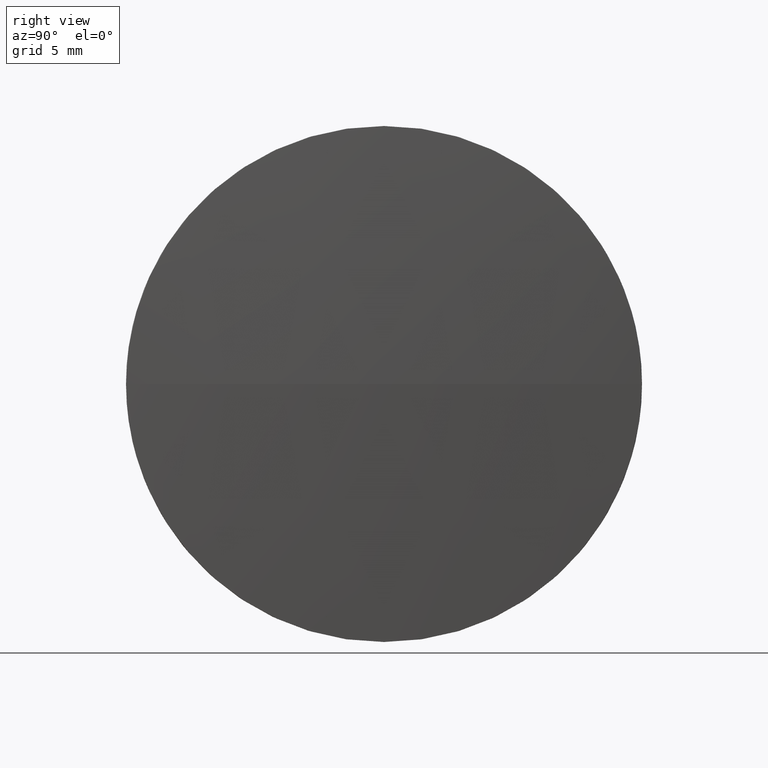
[diagram: clean part render]
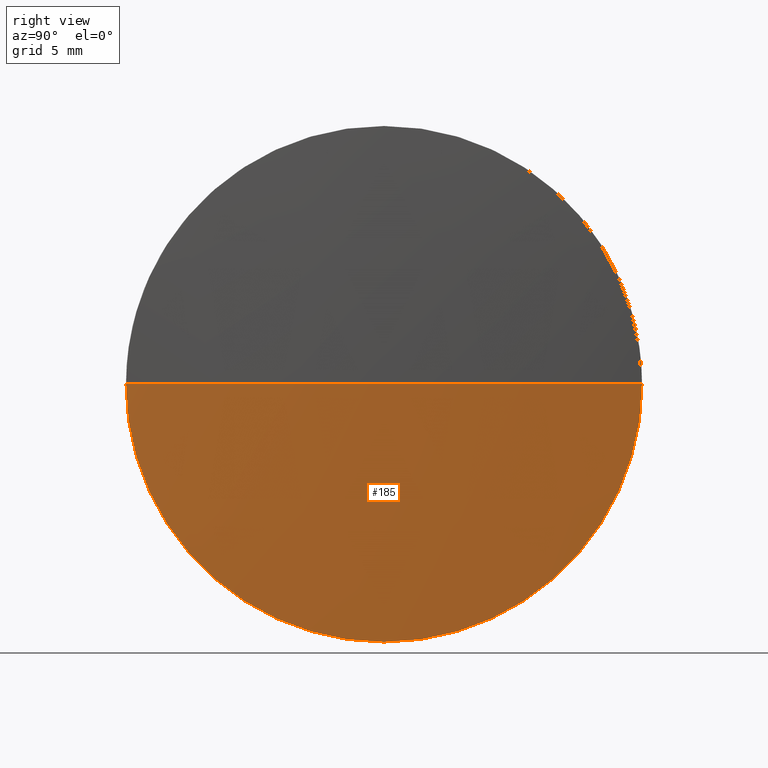
[diagram: same view with one face highlighted and labeled with its STEP entity id]
A machine part, right view. The second image highlights one B-rep face of the part: STEP entity #185.
In plain terms, the highlighted spherical surface has radius 183.504 mm.
Its self-contained STEP definition (entity closure, byte-faithful):
#3 = CARTESIAN_POINT ( 'NONE',  ( 117.8700467759432500, 65.23355492641219700, 0.0000000000000000000 ) ) ;
#5 = CIRCLE ( 'NONE', #88, 183.5040909090919300 ) ;
#9 = CARTESIAN_POINT ( 'NONE',  ( -65.19404413314869400, 65.23355492641219700, 0.0000000000000000000 ) ) ;
#10 = ORIENTED_EDGE ( 'NONE', *, *, #166, .T. ) ;
#22 = CARTESIAN_POINT ( 'NONE',  ( -65.19404413314869400, 65.23355492641219700, 0.0000000000000000000 ) ) ;
#27 = VERTEX_POINT ( 'NONE', #95 ) ;
#30 = VERTEX_POINT ( 'NONE', #122 ) ;
#34 = SPHERICAL_SURFACE ( 'NONE', #135, 183.5040909090919300 ) ;
#41 = DIRECTION ( 'NONE',  ( -0.0000000000000000000, 0.0000000000000000000, 1.000000000000000000 ) ) ;
#46 = EDGE_CURVE ( 'NONE', #87, #158, #182, .T. ) ;
#55 = CIRCLE ( 'NONE', #77, 183.5040909090919300 ) ;
#61 = AXIS2_PLACEMENT_3D ( 'NONE', #3, #139, #176 ) ;
#62 = EDGE_CURVE ( 'NONE', #27, #87, #173, .T. ) ;
#66 = DIRECTION ( 'NONE',  ( 0.0000000000000000000, 1.224646799147353200E-016, -1.000000000000000000 ) ) ;
#67 = CARTESIAN_POINT ( 'NONE',  ( -65.19404413314869400, 65.23355492641219700, 0.0000000000000000000 ) ) ;
#69 = CARTESIAN_POINT ( 'NONE',  ( 117.8700467759432500, 65.23355492641219700, -12.70000000000000300 ) ) ;
#70 = AXIS2_PLACEMENT_3D ( 'NONE', #83, #98, #137 ) ;
#77 = AXIS2_PLACEMENT_3D ( 'NONE', #67, #41, #179 ) ;
#83 = CARTESIAN_POINT ( 'NONE',  ( 117.8700467759432500, 65.23355492641219700, 0.0000000000000000000 ) ) ;
#87 = VERTEX_POINT ( 'NONE', #69 ) ;
#88 = AXIS2_PLACEMENT_3D ( 'NONE', #9, #66, #112 ) ;
#95 = CARTESIAN_POINT ( 'NONE',  ( 117.8700467759432400, 77.93355492641208600, 0.0000000000000000000 ) ) ;
#98 = DIRECTION ( 'NONE',  ( -1.000000000000000000, -0.0000000000000000000, -0.0000000000000000000 ) ) ;
#110 = FACE_OUTER_BOUND ( 'NONE', #148, .T. ) ;
#112 = DIRECTION ( 'NONE',  ( 0.0000000000000000000, 1.000000000000000000, 1.224646799147353200E-016 ) ) ;
#115 = CARTESIAN_POINT ( 'NONE',  ( 117.8700467759432400, 52.53355492641230700, -1.555301434917125400E-015 ) ) ;
#116 = DIRECTION ( 'NONE',  ( -0.0000000000000000000, 0.0000000000000000000, -1.000000000000000000 ) ) ;
#122 = CARTESIAN_POINT ( 'NONE',  ( 118.3100467759432300, 65.23355492641221100, 0.0000000000000000000 ) ) ;
#127 = DIRECTION ( 'NONE',  ( 0.0000000000000000000, 1.000000000000000000, 0.0000000000000000000 ) ) ;
#135 = AXIS2_PLACEMENT_3D ( 'NONE', #22, #116, #127 ) ;
#136 = ORIENTED_EDGE ( 'NONE', *, *, #147, .F. ) ;
#137 = DIRECTION ( 'NONE',  ( 0.0000000000000000000, 0.0000000000000000000, 1.000000000000000000 ) ) ;
#139 = DIRECTION ( 'NONE',  ( -1.000000000000000000, -0.0000000000000000000, -0.0000000000000000000 ) ) ;
#147 = EDGE_CURVE ( 'NONE', #30, #27, #55, .T. ) ;
#148 = EDGE_LOOP ( 'NONE', ( #136, #10, #175, #172 ) ) ;
#158 = VERTEX_POINT ( 'NONE', #115 ) ;
#166 = EDGE_CURVE ( 'NONE', #30, #158, #5, .T. ) ;
#172 = ORIENTED_EDGE ( 'NONE', *, *, #62, .F. ) ;
#173 = CIRCLE ( 'NONE', #70, 12.70000000000000300 ) ;
#175 = ORIENTED_EDGE ( 'NONE', *, *, #46, .F. ) ;
#176 = DIRECTION ( 'NONE',  ( 0.0000000000000000000, 0.0000000000000000000, 1.000000000000000000 ) ) ;
#179 = DIRECTION ( 'NONE',  ( 1.000000000000000000, 0.0000000000000000000, 0.0000000000000000000 ) ) ;
#182 = CIRCLE ( 'NONE', #61, 12.70000000000000300 ) ;
#185 = ADVANCED_FACE ( 'NONE', ( #110 ), #34, .T. ) ;